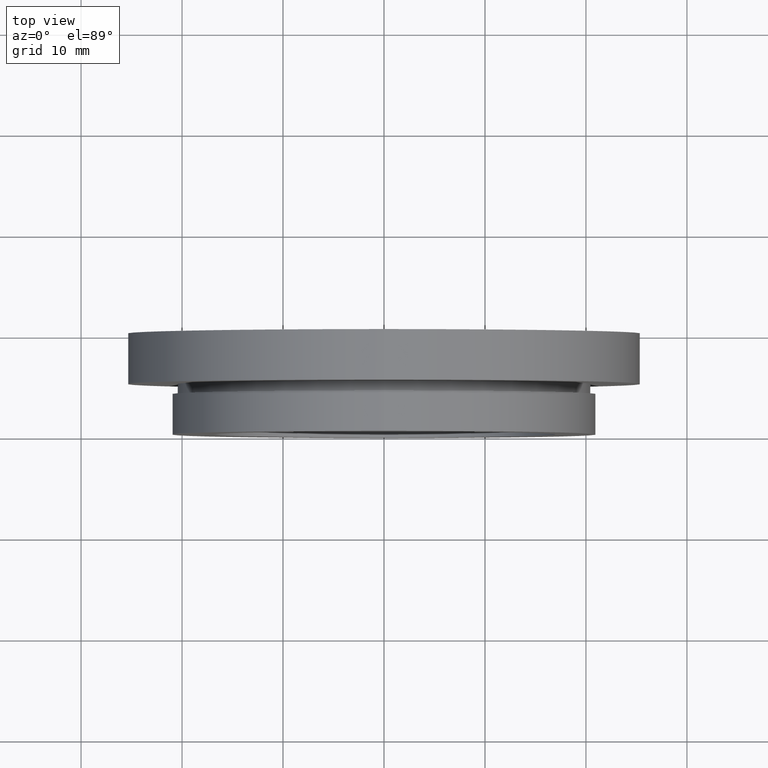
[diagram: clean part render]
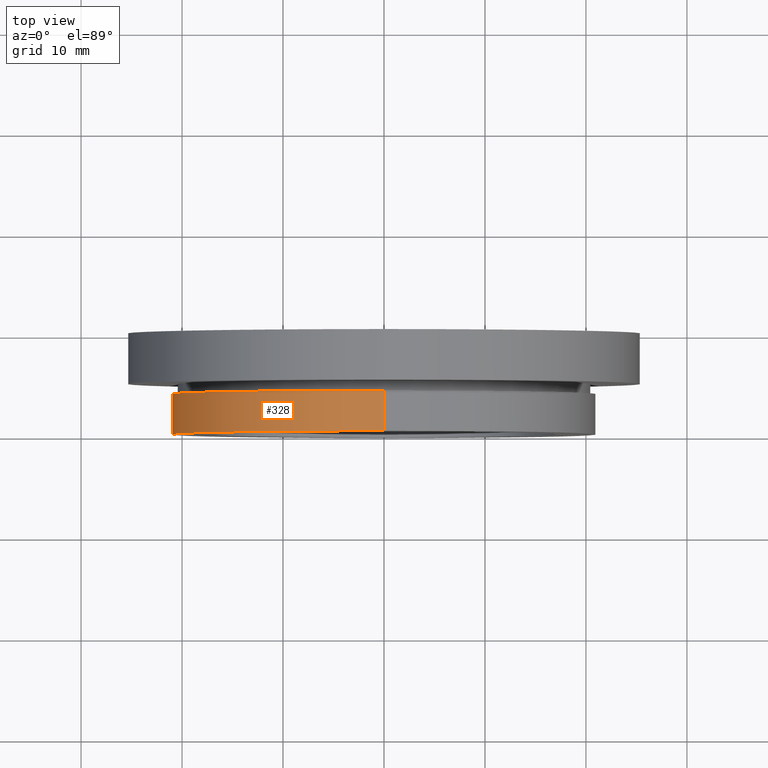
[diagram: same view with one face highlighted and labeled with its STEP entity id]
A machine part, top view. The second image highlights one B-rep face of the part: STEP entity #328.
In plain terms, the highlighted cylindrical surface (partial cylindrical patch) has radius 21 mm, axis along (-0, 1, -0).
Its self-contained STEP definition (entity closure, byte-faithful):
#34 = FACE_OUTER_BOUND ( 'NONE', #350, .T. ) ;
#41 = CARTESIAN_POINT ( 'NONE',  ( 2.571758278209441700E-015, 0.0000000000000000000, -21.00000000000000000 ) ) ;
#52 = AXIS2_PLACEMENT_3D ( 'NONE', #276, #186, #147 ) ;
#60 = VERTEX_POINT ( 'NONE', #480 ) ;
#68 = VECTOR ( 'NONE', #468, 1000.000000000000000 ) ;
#120 = CARTESIAN_POINT ( 'NONE',  ( 0.0000000000000000000, 4.000000000000000000, 0.0000000000000000000 ) ) ;
#144 = EDGE_CURVE ( 'NONE', #587, #443, #174, .T. ) ;
#147 = DIRECTION ( 'NONE',  ( 0.0000000000000000000, 0.0000000000000000000, 1.000000000000000000 ) ) ;
#174 = CIRCLE ( 'NONE', #175, 21.00000000000000000 ) ;
#175 = AXIS2_PLACEMENT_3D ( 'NONE', #573, #566, #184 ) ;
#184 = DIRECTION ( 'NONE',  ( 0.0000000000000000000, 0.0000000000000000000, 1.000000000000000000 ) ) ;
#186 = DIRECTION ( 'NONE',  ( -0.0000000000000000000, 1.000000000000000000, -0.0000000000000000000 ) ) ;
#200 = CARTESIAN_POINT ( 'NONE',  ( 0.0000000000000000000, 0.0000000000000000000, 21.00000000000000000 ) ) ;
#243 = VECTOR ( 'NONE', #254, 1000.000000000000000 ) ;
#254 = DIRECTION ( 'NONE',  ( -0.0000000000000000000, 1.000000000000000000, -0.0000000000000000000 ) ) ;
#265 = CYLINDRICAL_SURFACE ( 'NONE', #52, 21.00000000000000000 ) ;
#276 = CARTESIAN_POINT ( 'NONE',  ( 0.0000000000000000000, 13.74468085106383300, 0.0000000000000000000 ) ) ;
#279 = CARTESIAN_POINT ( 'NONE',  ( 0.0000000000000000000, 4.000000000000000000, 21.00000000000000000 ) ) ;
#300 = LINE ( 'NONE', #462, #68 ) ;
#320 = VERTEX_POINT ( 'NONE', #279 ) ;
#328 = ADVANCED_FACE ( 'NONE', ( #34 ), #265, .T. ) ;
#350 = EDGE_LOOP ( 'NONE', ( #485, #497, #494, #479 ) ) ;
#364 = CARTESIAN_POINT ( 'NONE',  ( 0.0000000000000000000, 13.74468085106383300, 21.00000000000000000 ) ) ;
#394 = EDGE_CURVE ( 'NONE', #60, #320, #514, .T. ) ;
#402 = LINE ( 'NONE', #364, #243 ) ;
#443 = VERTEX_POINT ( 'NONE', #200 ) ;
#448 = EDGE_CURVE ( 'NONE', #587, #60, #300, .T. ) ;
#456 = DIRECTION ( 'NONE',  ( -0.0000000000000000000, 1.000000000000000000, -0.0000000000000000000 ) ) ;
#462 = CARTESIAN_POINT ( 'NONE',  ( 2.571758278209441700E-015, 13.74468085106383300, -21.00000000000000000 ) ) ;
#468 = DIRECTION ( 'NONE',  ( -0.0000000000000000000, 1.000000000000000000, -0.0000000000000000000 ) ) ;
#479 = ORIENTED_EDGE ( 'NONE', *, *, #394, .F. ) ;
#480 = CARTESIAN_POINT ( 'NONE',  ( 2.571758278209441700E-015, 4.000000000000000000, -21.00000000000000000 ) ) ;
#485 = ORIENTED_EDGE ( 'NONE', *, *, #448, .F. ) ;
#494 = ORIENTED_EDGE ( 'NONE', *, *, #516, .T. ) ;
#497 = ORIENTED_EDGE ( 'NONE', *, *, #144, .T. ) ;
#514 = CIRCLE ( 'NONE', #603, 21.00000000000000000 ) ;
#516 = EDGE_CURVE ( 'NONE', #443, #320, #402, .T. ) ;
#524 = DIRECTION ( 'NONE',  ( 0.0000000000000000000, 0.0000000000000000000, 1.000000000000000000 ) ) ;
#566 = DIRECTION ( 'NONE',  ( -0.0000000000000000000, 1.000000000000000000, -0.0000000000000000000 ) ) ;
#573 = CARTESIAN_POINT ( 'NONE',  ( 0.0000000000000000000, 0.0000000000000000000, 0.0000000000000000000 ) ) ;
#587 = VERTEX_POINT ( 'NONE', #41 ) ;
#603 = AXIS2_PLACEMENT_3D ( 'NONE', #120, #456, #524 ) ;